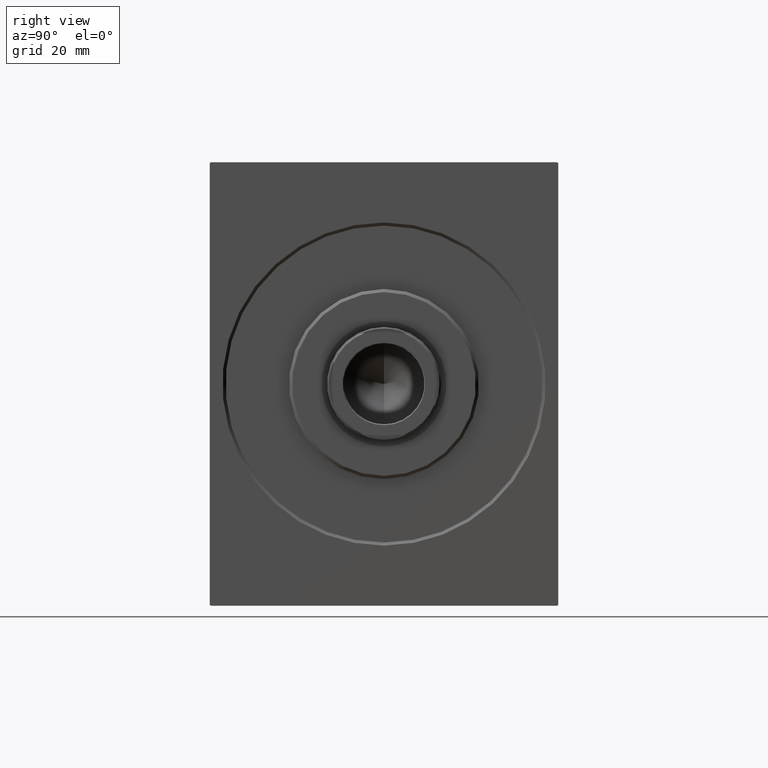
[diagram: clean part render]
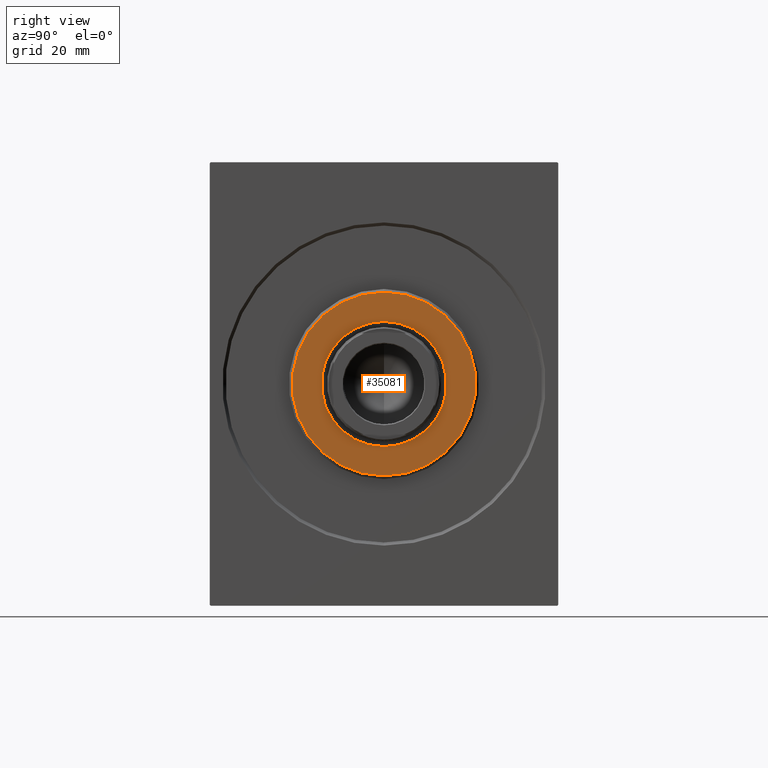
[diagram: same view with one face highlighted and labeled with its STEP entity id]
A machine part, right view. The second image highlights one B-rep face of the part: STEP entity #35081.
In plain terms, the highlighted planar face has unit normal (1, 0, 0).
Its self-contained STEP definition (entity closure, byte-faithful):
#1285 = DIRECTION ( 'NONE',  ( 0.000000000000000000, 0.000000000000000000, -1.000000000000000000 ) ) ;
#1929 = DIRECTION ( 'NONE',  ( 1.000000000000000000, -0.000000000000000000, 0.000000000000000000 ) ) ;
#2654 = CIRCLE ( 'NONE', #29646, 28.99999999999998224 ) ;
#2673 = CARTESIAN_POINT ( 'NONE',  ( 3.000000000000000000, 0.000000000000000000, 0.000000000000000000 ) ) ;
#4480 = EDGE_CURVE ( 'NONE', #31206, #25999, #17835, .T. ) ;
#5243 = ORIENTED_EDGE ( 'NONE', *, *, #33417, .T. ) ;
#6658 = CIRCLE ( 'NONE', #10116, 28.99999999999998224 ) ;
#7465 = CARTESIAN_POINT ( 'NONE',  ( 3.000000000000000000, 0.000000000000000000, 0.000000000000000000 ) ) ;
#8495 = ORIENTED_EDGE ( 'NONE', *, *, #35571, .T. ) ;
#8748 = PLANE ( 'NONE',  #28260 ) ;
#9176 = FACE_OUTER_BOUND ( 'NONE', #39123, .T. ) ;
#10116 = AXIS2_PLACEMENT_3D ( 'NONE', #24458, #1929, #28354 ) ;
#10322 = AXIS2_PLACEMENT_3D ( 'NONE', #41144, #21842, #15144 ) ;
#10465 = VERTEX_POINT ( 'NONE', #32805 ) ;
#12363 = ORIENTED_EDGE ( 'NONE', *, *, #4480, .T. ) ;
#15144 = DIRECTION ( 'NONE',  ( 0.000000000000000000, 0.000000000000000000, -1.000000000000000000 ) ) ;
#15570 = VERTEX_POINT ( 'NONE', #42229 ) ;
#17835 = CIRCLE ( 'NONE', #26833, 19.75000000000000000 ) ;
#18180 = DIRECTION ( 'NONE',  ( 1.000000000000000000, -0.000000000000000000, 0.000000000000000000 ) ) ;
#18709 = DIRECTION ( 'NONE',  ( 0.000000000000000000, 0.000000000000000000, -1.000000000000000000 ) ) ;
#20263 = ORIENTED_EDGE ( 'NONE', *, *, #42691, .T. ) ;
#20667 = DIRECTION ( 'NONE',  ( -1.000000000000000000, 0.000000000000000000, -0.000000000000000000 ) ) ;
#21102 = DIRECTION ( 'NONE',  ( 0.000000000000000000, 0.000000000000000000, -1.000000000000000000 ) ) ;
#21842 = DIRECTION ( 'NONE',  ( -1.000000000000000000, 0.000000000000000000, -0.000000000000000000 ) ) ;
#24458 = CARTESIAN_POINT ( 'NONE',  ( 3.000000000000000000, 0.000000000000000000, 0.000000000000000000 ) ) ;
#25999 = VERTEX_POINT ( 'NONE', #38978 ) ;
#26785 = CARTESIAN_POINT ( 'NONE',  ( 3.000000000000000000, 2.418677428316022331E-15, -19.75000000000000000 ) ) ;
#26833 = AXIS2_PLACEMENT_3D ( 'NONE', #7465, #20667, #21102 ) ;
#28260 = AXIS2_PLACEMENT_3D ( 'NONE', #2673, #29099, #18709 ) ;
#28354 = DIRECTION ( 'NONE',  ( 0.000000000000000000, 0.000000000000000000, -1.000000000000000000 ) ) ;
#29099 = DIRECTION ( 'NONE',  ( 1.000000000000000000, -0.000000000000000000, 0.000000000000000000 ) ) ;
#29646 = AXIS2_PLACEMENT_3D ( 'NONE', #34650, #18180, #1285 ) ;
#31206 = VERTEX_POINT ( 'NONE', #26785 ) ;
#31977 = EDGE_LOOP ( 'NONE', ( #20263, #12363 ) ) ;
#32805 = CARTESIAN_POINT ( 'NONE',  ( 3.000000000000000000, 3.612708057484690026E-15, -28.99999999999998224 ) ) ;
#33417 = EDGE_CURVE ( 'NONE', #10465, #15570, #6658, .T. ) ;
#34650 = CARTESIAN_POINT ( 'NONE',  ( 3.000000000000000000, 0.000000000000000000, 0.000000000000000000 ) ) ;
#35081 = ADVANCED_FACE ( 'NONE', ( #9176, #38411 ), #8748, .T. ) ;
#35571 = EDGE_CURVE ( 'NONE', #15570, #10465, #2654, .T. ) ;
#38411 = FACE_BOUND ( 'NONE', #31977, .T. ) ;
#38667 = CIRCLE ( 'NONE', #10322, 19.75000000000000000 ) ;
#38978 = CARTESIAN_POINT ( 'NONE',  ( 3.000000000000000000, 0.000000000000000000, 19.75000000000000000 ) ) ;
#39123 = EDGE_LOOP ( 'NONE', ( #8495, #5243 ) ) ;
#41144 = CARTESIAN_POINT ( 'NONE',  ( 3.000000000000000000, 0.000000000000000000, 0.000000000000000000 ) ) ;
#42229 = CARTESIAN_POINT ( 'NONE',  ( 3.000000000000000000, 0.000000000000000000, 28.99999999999998224 ) ) ;
#42691 = EDGE_CURVE ( 'NONE', #25999, #31206, #38667, .T. ) ;